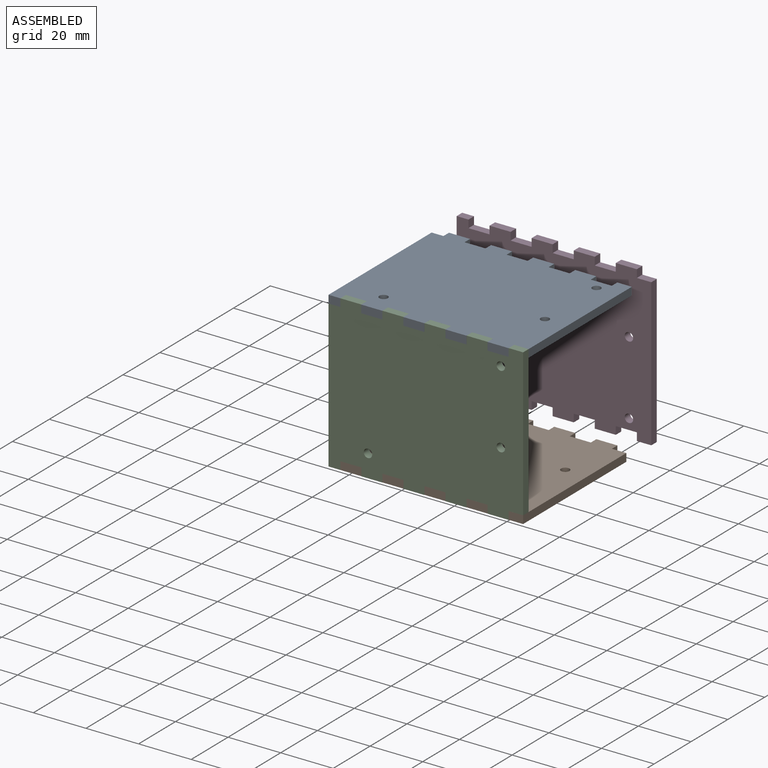
[diagram: assembled view]
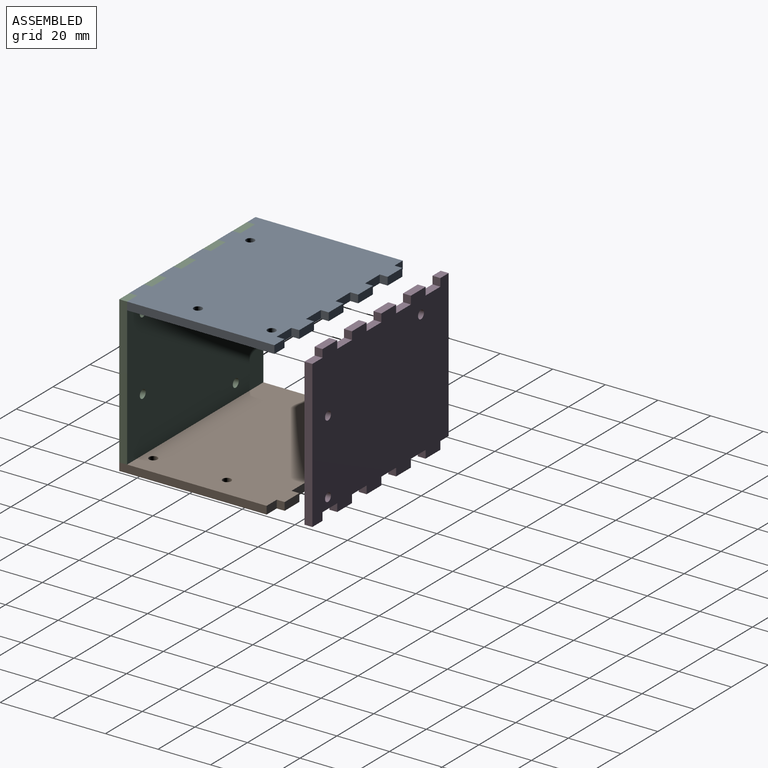
[diagram: assembled view, second angle]
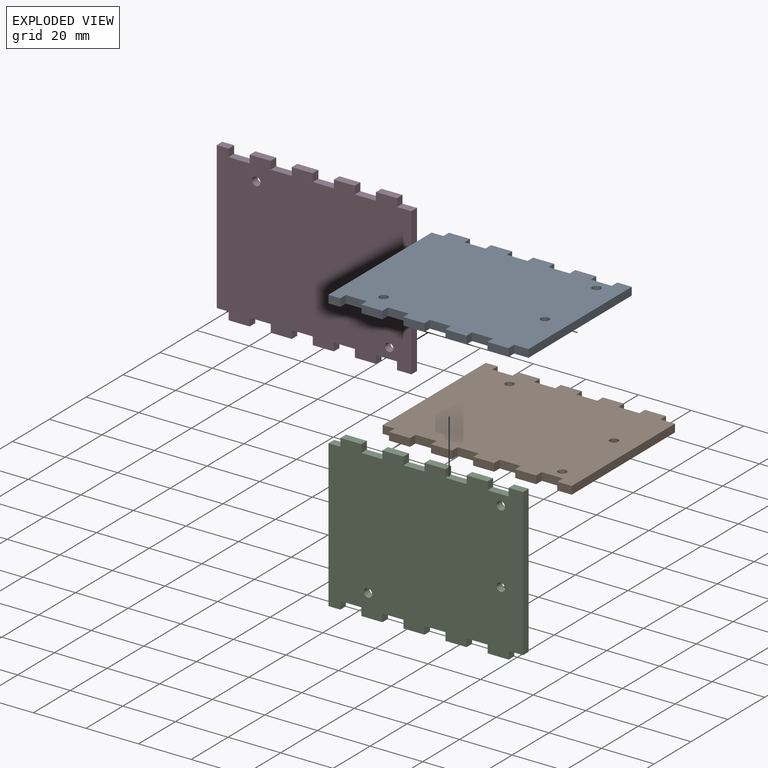
[diagram: exploded view]
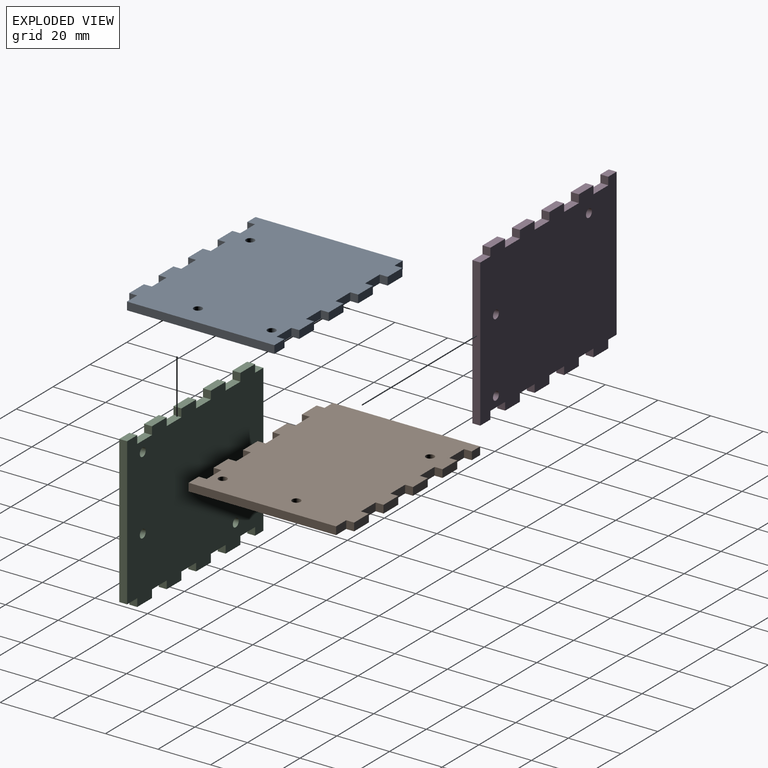
[diagram: exploded view, second angle]
ASSEMBLY  parts=4 mates=2
PART A: 45 faces, bbox 74x59.1x3 mm
  f0: plane 3x3mm, normal (-1,0,0), area 9mm2, adj f1,f41,f43,f44
  f1: plane 8x3mm, normal (0,1,0), area 24mm2, adj f0,f2,f43,f44
  f2: plane 3x2.95mm, normal (1,0,0), area 8.8mm2, adj f1,f3,f43,f44
  f3: plane 4.5x3mm, normal (0,1,0), area 13.5mm2, adj f2,f4,f43,f44
  f4: plane 56x3mm, normal (-1,0,0), area 168mm2, adj f3,f5,f43,f44
  f5: plane 4.5x3mm, normal (0,-1,0), area 13.5mm2, adj f4,f6,f43,f44
  f6: plane 3x3mm, normal (-1,0,0), area 9mm2, adj f5,f7,f43,f44
  f7: plane 8x3mm, normal (0,-1,0), area 24mm2, adj f6,f8,f43,f44
  f8: plane 3x3mm, normal (1,0,0), area 9mm2, adj f7,f9,f43,f44
  f9: plane 8x3mm, normal (0,-1,0), area 24mm2, adj f8,f10,f43,f44
  f10: plane 3x3mm, normal (-1,0,0), area 9mm2, adj f9,f11,f43,f44
  f11: plane 8x3mm, normal (0,-1,0), area 24mm2, adj f10,f12,f43,f44
  f12: plane 3x3mm, normal (1,0,0), area 9mm2, adj f11,f13,f43,f44
  f13: plane 8x3mm, normal (0,-1,0), area 24mm2, adj f12,f14,f43,f44
  f14: plane 3x3mm, normal (-1,0,0), area 9mm2, adj f13,f15,f43,f44
  f15: plane 8x3mm, normal (0,-1,0), area 24mm2, adj f14,f16,f43,f44
  f16: plane 3x3mm, normal (1,0,0), area 9mm2, adj f15,f17,f43,f44
  f17: plane 8x3mm, normal (0,-1,0), area 24mm2, adj f16,f18,f43,f44
  f18: plane 3x3mm, normal (-1,0,0), area 9mm2, adj f17,f19,f43,f44
  f19: plane 8x3mm, normal (0,-1,0), area 24mm2, adj f18,f20,f43,f44
  f20: plane 3x3mm, normal (1,0,0), area 9mm2, adj f19,f21,f43,f44
  f21: plane 8x3mm, normal (0,-1,0), area 24mm2, adj f20,f22,f43,f44
  f22: plane 3x3mm, normal (-1,0,0), area 9mm2, adj f21,f23,f43,f44
  f23: plane 5.5x3mm, normal (0,-1,0), area 16.5mm2, adj f22,f24,f43,f44
  f24: plane 56.05x3mm, normal (1,0,0), area 168.2mm2, adj f23,f25,f43,f44
  f25: plane 5.5x3mm, normal (0,1,0), area 16.5mm2, adj f24,f26,f43,f44
  f26: plane 3x3mm, normal (1,0,0), area 9mm2, adj f25,f27,f43,f44
  f27: plane 8x3mm, normal (0,1,0), area 24mm2, adj f26,f28,f43,f44
  f28: plane 3x3mm, normal (-1,0,0), area 9mm2, adj f27,f29,f43,f44
  f29: plane 8x3mm, normal (0,1,0), area 24mm2, adj f28,f30,f43,f44
  f30: plane 3x3mm, normal (1,0,0), area 9mm2, adj f29,f31,f43,f44
  f31: plane 8x3mm, normal (0,1,0), area 24mm2, adj f30,f32,f43,f44
  f32: plane 3x3mm, normal (-1,0,0), area 9mm2, adj f31,f33,f43,f44
  f33: plane 8x3mm, normal (0,1,0), area 24mm2, adj f32,f34,f43,f44
  f34: plane 3x3mm, normal (1,0,0), area 9mm2, adj f33,f35,f43,f44
  f35: plane 8x3mm, normal (0,1,0), area 24mm2, adj f34,f36,f43,f44
  f36: plane 3x3mm, normal (-1,0,0), area 9mm2, adj f35,f37,f43,f44
  f37: plane 8x3mm, normal (0,1,0), area 24mm2, adj f36,f38,f43,f44
  f38: plane 3x3mm, normal (1,0,0), area 9mm2, adj f37,f41,f43,f44
  f39: cylinder r=1.6mm len=3.2mm, axis (0,0,-1), area 30.2mm2, adj f43,f44
  f40: cylinder r=1.6mm len=3.2mm, axis (0,0,-1), area 30.2mm2, adj f43,f44
  f41: plane 8x3mm, normal (0,1,0), area 24mm2, adj f0,f38,f43,f44
  f42: cylinder r=1.6mm len=3.2mm, axis (0,0,-1), area 30.2mm2, adj f43,f44
  f43: plane 74x59.05mm, normal (0,0,1), area 4123.3mm2, adj f0,f1,f2,f3,f4,f5,f6,f7
  f44: plane 74x59.05mm, normal (0,0,-1), area 4123.3mm2, adj f0,f1,f2,f3,f4,f5,f6,f7
PART B: same geometry as A
PART C: same geometry as A
PART D: same geometry as A
PLACE A rot(axis=(-1,0,0),180deg) t=(-10.48,-56.69,69.73)mm
PLACE B t=(-10.48,-56.69,10.73)mm
PLACE C rot(axis=(-1,0,0),90deg) t=(-10.48,-86.19,40.23)mm
PLACE D rot(axis=(1,0,0),90deg) t=(-10.87,-13.04,40.37)mm
MATE fastened B.f5 <-> C.f43  axis (0,-1,0) through (-47.48,-83.19,10.73)mm
MATE fastened A.f43 <-> C.f5  axis (0,0,-1) through (-47.48,-86.19,66.73)mm
